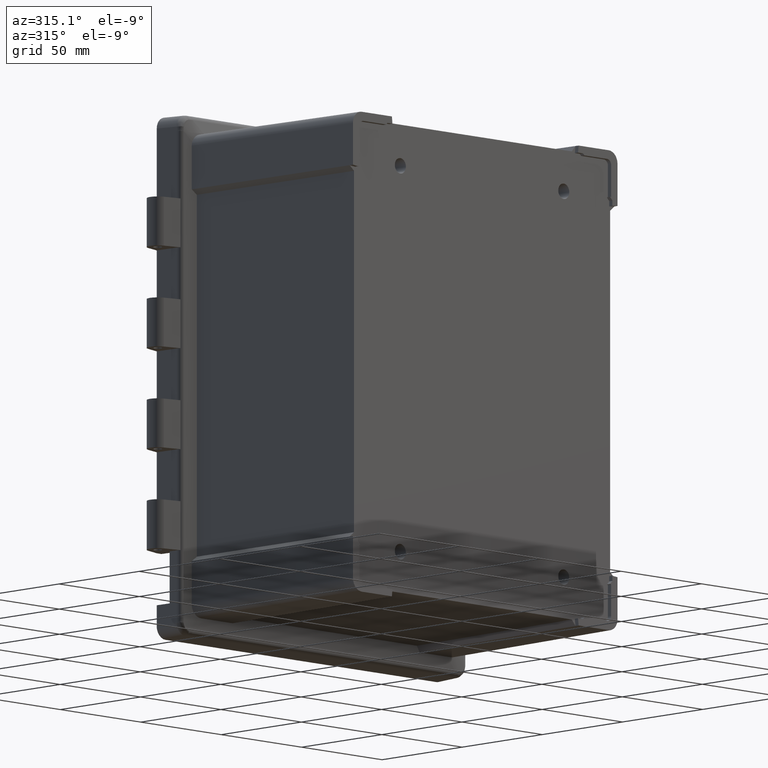
[diagram: clean part render]
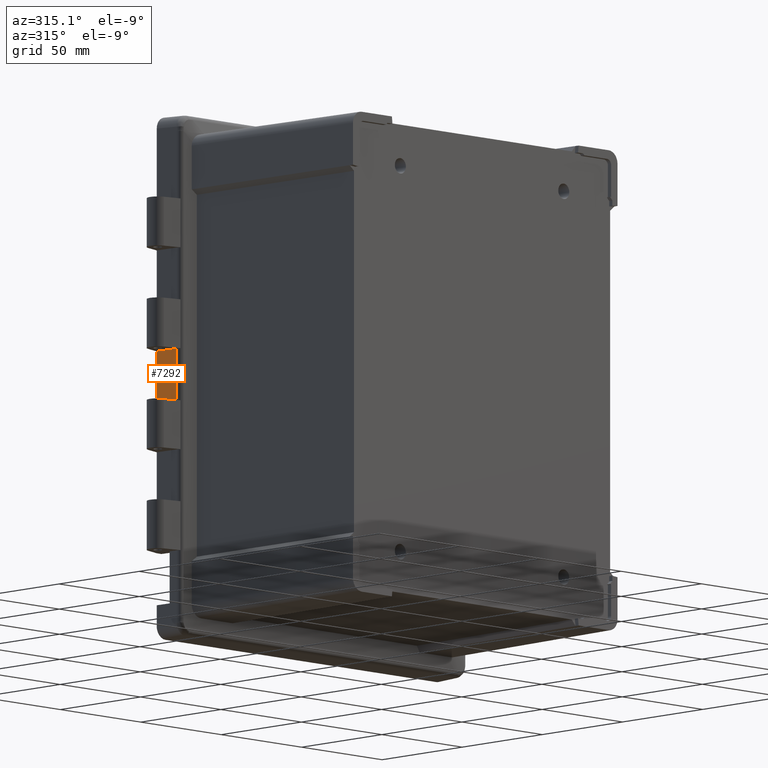
[diagram: same view with one face highlighted and labeled with its STEP entity id]
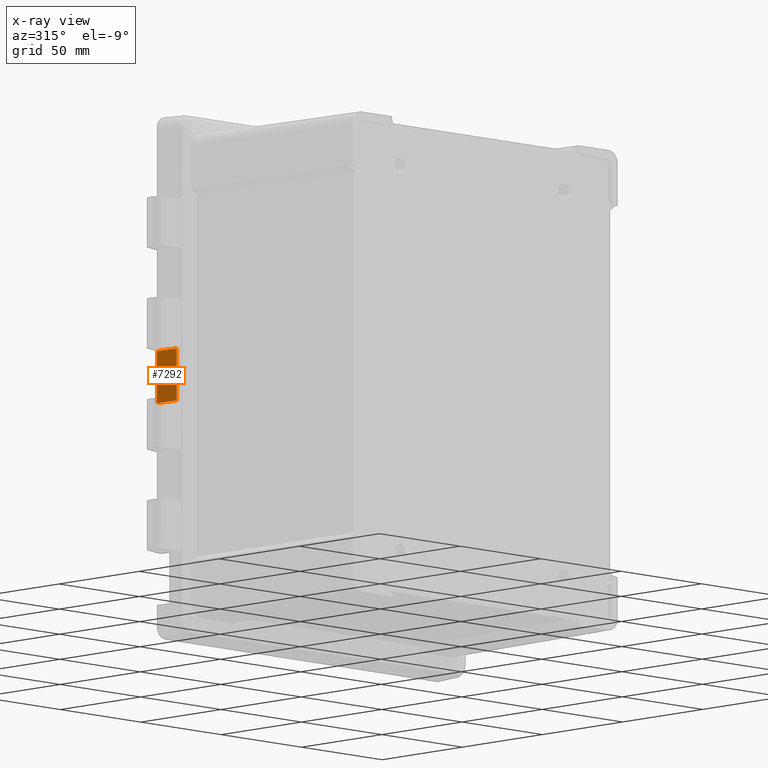
[diagram: x-ray of the same camera — body ghosted, the highlighted face saturated]
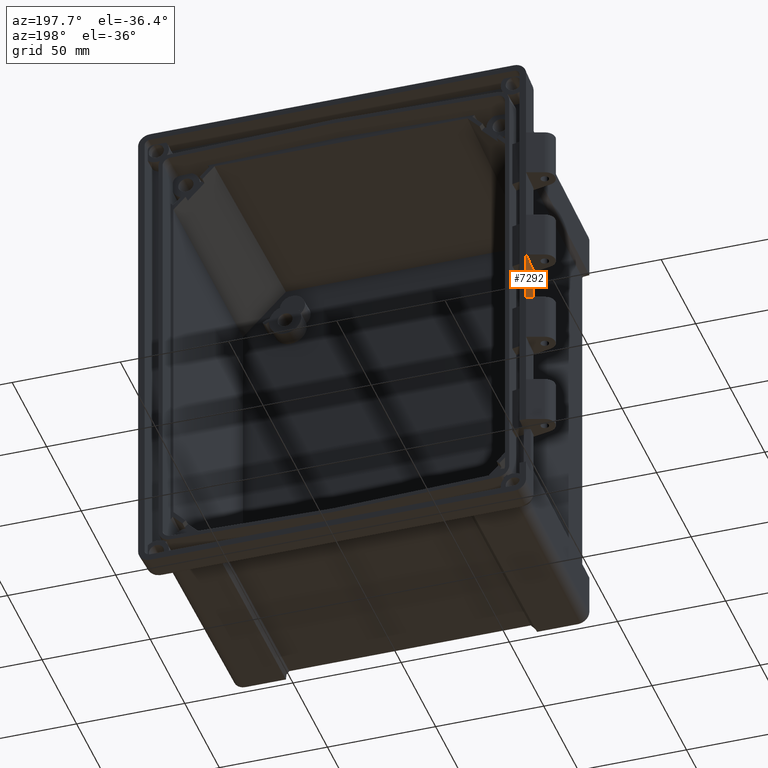
[diagram: same view with one face highlighted and labeled with its STEP entity id]
A machine part, auxiliary view. The second image highlights one B-rep face of the part: STEP entity #7292.
The next image is the same camera in x-ray: the body ghosted, the highlighted face saturated — about 0% of this face is hidden behind the body in this view.
A second angle (auxiliary view) of the same face is appended — the face is thin or edge-on in the first view.
In plain terms, the highlighted planar face has unit normal (-0.9994, -0.0349, 0).
Its self-contained STEP definition (entity closure, byte-faithful):
#1091 = EDGE_LOOP ( 'NONE', ( #10520, #16401, #2567, #2532 ) ) ;
#1932 = LINE ( 'NONE', #16486, #8915 ) ;
#1960 = LINE ( 'NONE', #2495, #16785 ) ;
#2149 = EDGE_CURVE ( 'NONE', #12692, #5167, #1932, .T. ) ;
#2475 = LINE ( 'NONE', #4399, #10281 ) ;
#2488 = CARTESIAN_POINT ( 'NONE',  ( -89.22530965057779900, -12.04797577896829500, 11.60000000000000000 ) ) ;
#2495 = CARTESIAN_POINT ( 'NONE',  ( -89.64603423559731300, 0.0000000000000000000, -116.3960342355972400 ) ) ;
#2532 = ORIENTED_EDGE ( 'NONE', *, *, #11660, .T. ) ;
#2534 = DIRECTION ( 'NONE',  ( 0.03489949670250104600, -0.9993908270190956500, 0.0000000000000000000 ) ) ;
#2567 = ORIENTED_EDGE ( 'NONE', *, *, #10934, .T. ) ;
#4335 = DIRECTION ( 'NONE',  ( 0.0000000000000000000, 0.0000000000000000000, 1.000000000000000000 ) ) ;
#4399 = CARTESIAN_POINT ( 'NONE',  ( -89.22530965057779900, -12.04797577896829400, -116.3960342355972400 ) ) ;
#4522 = VERTEX_POINT ( 'NONE', #9491 ) ;
#4782 = EDGE_CURVE ( 'NONE', #12692, #17122, #2475, .T. ) ;
#5167 = VERTEX_POINT ( 'NONE', #6484 ) ;
#6484 = CARTESIAN_POINT ( 'NONE',  ( -89.64603423559731300, 0.0000000000000000000, -11.59999999999998500 ) ) ;
#6644 = VECTOR ( 'NONE', #11870, 1000.000000000000100 ) ;
#7194 = DIRECTION ( 'NONE',  ( -0.03489949670250104600, 0.9993908270190956500, -0.0000000000000000000 ) ) ;
#7292 = ADVANCED_FACE ( 'NONE', ( #16276 ), #12062, .T. ) ;
#7774 = AXIS2_PLACEMENT_3D ( 'NONE', #16063, #10618, #2534 ) ;
#8915 = VECTOR ( 'NONE', #7194, 1000.000000000000100 ) ;
#9237 = DIRECTION ( 'NONE',  ( -0.0000000000000000000, -0.0000000000000000000, -1.000000000000000000 ) ) ;
#9491 = CARTESIAN_POINT ( 'NONE',  ( -89.64603423559731300, 0.0000000000000000000, 11.60000000000000000 ) ) ;
#10281 = VECTOR ( 'NONE', #4335, 1000.000000000000000 ) ;
#10520 = ORIENTED_EDGE ( 'NONE', *, *, #2149, .F. ) ;
#10618 = DIRECTION ( 'NONE',  ( -0.9993908270190957600, -0.03489949670250105200, 0.0000000000000000000 ) ) ;
#10934 = EDGE_CURVE ( 'NONE', #17122, #4522, #16165, .T. ) ;
#11660 = EDGE_CURVE ( 'NONE', #4522, #5167, #1960, .T. ) ;
#11870 = DIRECTION ( 'NONE',  ( -0.03489949670250104600, 0.9993908270190956500, -0.0000000000000000000 ) ) ;
#12062 = PLANE ( 'NONE',  #7774 ) ;
#12692 = VERTEX_POINT ( 'NONE', #14245 ) ;
#14245 = CARTESIAN_POINT ( 'NONE',  ( -89.22530965057779900, -12.04797577896829400, -11.60000000000000000 ) ) ;
#16063 = CARTESIAN_POINT ( 'NONE',  ( -89.64603423559731300, 0.0000000000000000000, -116.3960342355972400 ) ) ;
#16165 = LINE ( 'NONE', #17373, #6644 ) ;
#16276 = FACE_OUTER_BOUND ( 'NONE', #1091, .T. ) ;
#16401 = ORIENTED_EDGE ( 'NONE', *, *, #4782, .T. ) ;
#16486 = CARTESIAN_POINT ( 'NONE',  ( -89.64603423559731300, 0.0000000000000000000, -11.60000000000000000 ) ) ;
#16785 = VECTOR ( 'NONE', #9237, 1000.000000000000000 ) ;
#17122 = VERTEX_POINT ( 'NONE', #2488 ) ;
#17373 = CARTESIAN_POINT ( 'NONE',  ( -89.64603423559731300, 0.0000000000000000000, 11.60000000000000000 ) ) ;